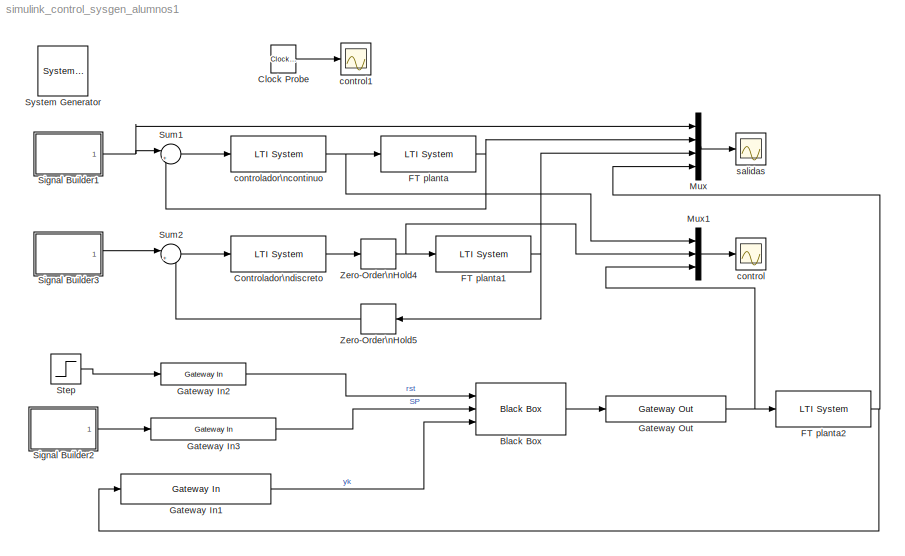
MODEL simulink_control_sysgen_alumnos1
KIND model
BLOCK [Reference]  System Generator  REF=xbsIndex_r4/ System Generator
  AttributesFormatString = System\\nGenerator
  Impl_file = ISE Defaults
  Ports = []
  SID = 43
  SourceBlock = xbsIndex_r4/ System Generator
  SourceType = Xilinx System Generator Block
  Synth_file = XST Defaults
  Tag = genX
  UserData = DataTag0
  UserDataPersistent = on
  block_type = sysgen
  clock_wrapper = Clock Enables
  core_generation = According to Block Masks
  dbl_ovrd = According to Block Masks
  dcm_input_clock_period = 10
  deprecated_control = off
  directory = <path>
  eval_field = 0
  has_advanced_control = 0
  incr_netlist = off
  infoedit = System Generator
  package = fg320
  part = xc3s500e
  proj_type = Project Navigator
  run_coregen = off
  sg_icon_stat = 50,50,0,0,token,white,0,58c5b5770fe5f7c311f53dbc6e73f0f6,right,,[ ],[ ]
  sg_mask_display = fprintf('','COMMENT: begin icon graphics');\npatch([0 50 50 0 0 ],[0 0 50 50 0 ],[1 1 1 ]);\npatch([1.6375 16.81 27.31 37.81 48.31 27.31 12.1375 1.6375 ],[36.655 36.655 47.155 36.655 47.155 47.155 47.155 36.655 ],[0.933333 0.203922 0.141176 ]);\npatch([12.1375 27.31 16.81 1.6375 12.1375 ],[26.155 26.155 36.655 36.655 26.155 ],[0.698039 0.0313725 0.219608 ]);\npatch([1.6375 16.81 27.31 12.1375 1.63...<+335ch>
  sggui_pos = 33,499,464,470
  simulink_period = 1E-3
  speed = -4
  synthesis_tool = XST
  sysclk_period = 20
  testbench = off
  trim_vbits = Everywhere in SubSystem
  xilinxfamily = spartan3e
BLOCK [Reference] Black Box  REF=xbsIndex_r4/Black Box
  Ports = [3, 1]
  SID = 101
  SourceBlock = xbsIndex_r4/Black Box
  SourceType = Xilinx Black Box Block
  block_type = blackbox2
  has_advanced_control = 0
  infoedit = Incorporates black box HDL and simulation model into a System Generator design.<br><br>You must supply a Black Box with certain information about the HDL component you would like to bring into System Generator. This information is provided through a Matlab function.<br><br>When \"Simulation mode\" is set to \"Inactive\", you will typically want to provide a separate simulation model by using a Sim...<+134ch>
  init_code = blackbox_wrapper_config
  sg_icon_stat = 90,52,3,1,white,blue,0,4235c655,right,,[ ],[ ]
  sg_mask_display = fprintf('','COMMENT: begin icon graphics');\npatch([0 90 90 0 0 ],[0 0 52 52 0 ],[0.77 0.82 0.91 ]);\nplot([0 90 90 0 0 ],[0 0 52 52 0 ]);\npatch([29.425 39.54 46.54 53.54 60.54 46.54 36.425 29.425 ],[33.77 33.77 40.77 33.77 40.77 40.77 40.77 33.77 ],[1 1 1 ]);\npatch([36.425 46.54 39.54 29.425 36.425 ],[26.77 26.77 33.77 33.77 26.77 ],[0.931 0.946 0.973 ]);\npatch([29.425 39.54 46.54 36.425 29.42...<+475ch>
  sggui_pos = -1,-1,-1,-1
  sim_method = ISE Simulator
  verbose = off
  xl_area = [0,0,0,0,0,0,0]
  xl_use_area = off
BLOCK [Reference] Clock Probe  REF=xbsIndex_r4/Clock Probe
  Ports = [0, 1]
  SID = 59
  SourceBlock = xbsIndex_r4/Clock Probe
  SourceType = Xilinx Clock Probe Block
  block_type = clkprobe
  has_advanced_control = 0
  infoedit = Clock probe.  Produces an output of type double that mirrors the hardware system clock.<br><br>Hardware notes:  This block is ignored when hardware is generated.
  sg_icon_stat = 25,28,0,1,white,yellow,4,98485602ae9d5ec3f0246e5c583bf6c6,right,,[ ],[ ]
  sg_mask_display = fprintf('','COMMENT: begin icon graphics');\npatch([25 24.7598 24.0485 22.8934 21.3388 19.4446 17.2835 14.9386 12.5 10.0614 7.71646 5.55537 3.66117 2.10663 0.951506 0.240184 0 0.240184 0.951506 2.10663 3.66117 5.55537 7.71646 10.0614 12.5 14.9386 17.2835 19.4446 21.3388 22.8934 24.0485 24.7598 25 25 ],[14 16.7313 19.3576 21.778 23.8995 25.6406 26.9343 27.731 28 27.731 26.9343 25.6406 23.8995 21.77...<+1201ch>
  sggui_pos = -1,-1,-1,-1
BLOCK [Reference] Controlador\ndiscreto  REF=cstblocks/LTI System
  IC = []
  Ports = [1, 1]
  SID = 26
  SourceBlock = cstblocks/LTI System
  SourceType = LTI Block
  sys = CT2_tust
BLOCK [Reference] FT planta  REF=cstblocks/LTI System
  IC = []
  Ports = [1, 1]
  SID = 21
  SourceBlock = cstblocks/LTI System
  SourceType = LTI Block
  sys = G
BLOCK [Reference] FT planta1  REF=cstblocks/LTI System
  IC = []
  Ports = [1, 1]
  SID = 27
  SourceBlock = cstblocks/LTI System
  SourceType = LTI Block
  sys = G
BLOCK [Reference] FT planta2  REF=cstblocks/LTI System
  IC = []
  Ports = [1, 1]
  SID = 91
  SourceBlock = cstblocks/LTI System
  SourceType = LTI Block
  sys = G
BLOCK [Reference] Gateway In1  REF=xbsIndex_r4/Gateway In
  ADCChannel = '1'
  LOCs = {}
  Ports = [1, 1]
  SID = 45
  SourceBlock = xbsIndex_r4/Gateway In
  SourceType = Xilinx Gateway In Block
  UseAsADC = off
  arith_type = Signed  (2's comp)
  bin_pt = 10
  block_type = gatewayin
  dbl_ovrd = off
  exp_width = 8
  frac_width = 24
  gui_display_data_type = Fixed-point
  has_advanced_control = 0
  hdl_port = on
  infoedit = Gateway in block.  Converts inputs of type Simulink integer, single, double and fixed-point to  Xilinx fixed-point or floating-point data type.<br><br>Hardware notes:  In hardware these blocks become top level input ports.  <repeated x3 — deduplicated; at blocks: Gateway In1, Gateway In2, Gateway In3>
  inherit_from_input = off
  locs_specified = off
  n_bits = 12
  overflow = Saturate
  period = 2e-3
  preci_type = Single
  quantization = Truncate
  sg_icon_stat = 150,30,1,1,white,yellow,1,d35bf8a1,right,,[ ],[ ]
  sg_mask_display = fprintf('','COMMENT: begin icon graphics');\npatch([0 150 150 0 0 ],[0 0 30 30 0 ],[0.95 0.93 0.65 ]);\nplot([0 150 150 0 0 ],[0 0 30 30 0 ]);\npatch([66.1 71.88 75.88 79.88 83.88 75.88 70.1 66.1 ],[19.44 19.44 23.44 19.44 23.44 23.44 23.44 19.44 ],[1 1 1 ]);\npatch([70.1 75.88 71.88 66.1 70.1 ],[15.44 15.44 19.44 19.44 15.44 ],[0.985 0.979 0.895 ]);\npatch([66.1 71.88 75.88 70.1 66.1 ],[11.44 11....<+370ch>
  sggui_pos = 1127,312,348,604
  timing_constraint = None
  xl_area = [0,0,0,0,0,0,0]
  xl_use_area = off
BLOCK [Reference] Gateway In2  REF=xbsIndex_r4/Gateway In
  ADCChannel = '1'
  LOCs = {}
  Ports = [1, 1]
  SID = 50
  SourceBlock = xbsIndex_r4/Gateway In
  SourceType = Xilinx Gateway In Block
  UseAsADC = off
  arith_type = Boolean
  bin_pt = 0
  block_type = gatewayin
  dbl_ovrd = off
  exp_width = 8
  frac_width = 24
  gui_display_data_type = Boolean
  has_advanced_control = 0
  hdl_port = on
  inherit_from_input = off
  locs_specified = off
  n_bits = 1
  overflow = Saturate
  period = 2E-3
  preci_type = Single
  quantization = Round  (unbiased: +/- Inf)
  sg_icon_stat = 85,22,1,1,white,yellow,1,d35bf8a1,right,,[ ],[ ]
  sg_mask_display = fprintf('','COMMENT: begin icon graphics');\npatch([0 85 85 0 0 ],[0 0 22 22 0 ],[0.95 0.93 0.65 ]);\nplot([0 85 85 0 0 ],[0 0 22 22 0 ]);\npatch([35.325 39.66 42.66 45.66 48.66 42.66 38.325 35.325 ],[14.33 14.33 17.33 14.33 17.33 17.33 17.33 14.33 ],[1 1 1 ]);\npatch([38.325 42.66 39.66 35.325 38.325 ],[11.33 11.33 14.33 14.33 11.33 ],[0.985 0.979 0.895 ]);\npatch([35.325 39.66 42.66 38.325 35.32...<+384ch>
  sggui_pos = 839,213,348,604
  timing_constraint = None
  xl_area = [0,0,0,0,0,0,0]
  xl_use_area = off
BLOCK [Reference] Gateway In3  REF=xbsIndex_r4/Gateway In
  ADCChannel = '1'
  LOCs = {}
  Ports = [1, 1]
  SID = 51
  SourceBlock = xbsIndex_r4/Gateway In
  SourceType = Xilinx Gateway In Block
  UseAsADC = off
  arith_type = Signed  (2's comp)
  bin_pt = 9
  block_type = gatewayin
  dbl_ovrd = off
  exp_width = 8
  frac_width = 24
  gui_display_data_type = Fixed-point
  has_advanced_control = 0
  hdl_port = on
  inherit_from_input = off
  locs_specified = off
  n_bits = 12
  overflow = Saturate
  period = 2E-3
  preci_type = Single
  quantization = Truncate
  sg_icon_stat = 125,22,1,1,white,yellow,1,d35bf8a1,right,,[ ],[ ]
  sg_mask_display = fprintf('','COMMENT: begin icon graphics');\npatch([0 125 125 0 0 ],[0 0 22 22 0 ],[0.95 0.93 0.65 ]);\nplot([0 125 125 0 0 ],[0 0 22 22 0 ]);\npatch([55.325 59.66 62.66 65.66 68.66 62.66 58.325 55.325 ],[14.33 14.33 17.33 14.33 17.33 17.33 17.33 14.33 ],[1 1 1 ]);\npatch([58.325 62.66 59.66 55.325 58.325 ],[11.33 11.33 14.33 14.33 11.33 ],[0.985 0.979 0.895 ]);\npatch([55.325 59.66 62.66 58.325 5...<+388ch>
  sggui_pos = 765,303,348,604
  timing_constraint = None
  xl_area = [0,0,0,0,0,0,0]
  xl_use_area = off
BLOCK [Reference] Gateway Out  REF=xbsIndex_r4/Gateway Out
  DACChannel = '1'
  LOCs = {}
  Ports = [1, 1]
  SID = 46
  SourceBlock = xbsIndex_r4/Gateway Out
  SourceType = Xilinx Gateway Out Block
  UseAsDAC = off
  block_type = gatewayout
  has_advanced_control = 0
  hdl_port = on
  infoedit = Gateway out block.  Converts Xilinx fixed-point or floating-point type inputs into ouputs of type Simulink integer, single, double, or fixed-point.<br><br>Hardware notes:  In hardware these blocks become top level output ports or are discarded, depending on how they are configured.
  inherit_from_input = off
  locs_specified = off
  sg_icon_stat = 120,26,1,1,white,yellow,1,c717efaa,right,,[ ],[ ]
  sg_mask_display = fprintf('','COMMENT: begin icon graphics');\npatch([0 120 120 0 0 ],[0 0 26 26 0 ],[0.95 0.93 0.65 ]);\nplot([0 120 120 0 0 ],[0 0 26 26 0 ]);\npatch([53.325 57.66 60.66 63.66 66.66 60.66 56.325 53.325 ],[16.33 16.33 19.33 16.33 19.33 19.33 19.33 16.33 ],[1 1 1 ]);\npatch([56.325 60.66 57.66 53.325 56.325 ],[13.33 13.33 16.33 16.33 13.33 ],[0.985 0.979 0.895 ]);\npatch([53.325 57.66 60.66 56.325 5...<+394ch>
  sggui_pos = -1,-1,-1,-1
  timing_constraint = None
  xl_area = [0,0,0,0,0,0,0]
  xl_use_area = off
BLOCK [Mux] Mux
  DisplayOption = bar
  Ports = [4, 1]
  SID = 25
BLOCK [Mux] Mux1
  DisplayOption = bar
  Inputs = 3
  Ports = [3, 1]
  SID = 33
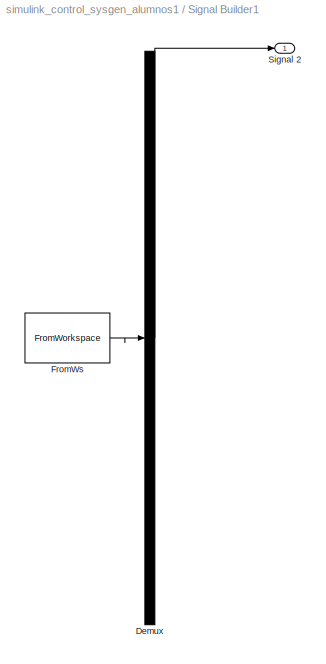
BLOCK [SubSystem] Signal Builder1
  ClipboardFcn = sigbuilder_block('clipboard');
  CloseFcn = sigbuilder_block('close');
  ContinueFcn = sigbuilder_block('continue')
  CopyFcn = sigbuilder_block('copy');
  DeleteFcn = sigbuilder_block('delete');
  FunctionWithSeparateData = off
  LoadFcn = sigbuilder_block('load');
  MaskHideContents = on
  MinAlgLoopOccurrences = off
  ModelCloseFcn = sigbuilder_block('modelClose');
  NameChangeFcn = sigbuilder_block('namechange');
  Opaque = off
  OpenFcn = sigbuilder_block('open',[403.5 199.5 550.5 395.25 ]);
  PauseFcn = sigbuilder_block('pause')
  Ports = [0, 1]
  PreSaveFcn = sigbuilder_block('preSave');
  PropExecContextOutsideSubsystem = off
  RTWSystemCode = Auto
  RequestExecContextInheritance = off
  SID = 85
  StartFcn = sigbuilder_block('start');
  StopFcn = sigbuilder_block('stop');
  Tag = STV Subsys
BLOCK [Demux] Signal Builder1/Demux
  Outputs = 1
  Ports = [1, 1]
  SID = 85:1
  Tag = STV Demux
BLOCK [FromWorkspace] Signal Builder1/FromWs
  SID = 85:2
  SampleTime = 0
  SigBuilderData = DataTag1
  Tag = STV FromWs
  VariableName = tuvar
  VnvData = DataTag2
  ZeroCross = on
BLOCK [Outport] Signal Builder1/Signal 2
  IconDisplay = Port number
  SID = 85:5
  Tag = STV Outport
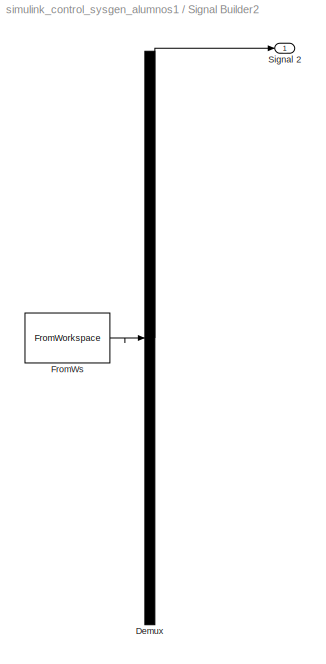
BLOCK [SubSystem] Signal Builder2
  ClipboardFcn = sigbuilder_block('clipboard');
  CloseFcn = sigbuilder_block('close');
  ContinueFcn = sigbuilder_block('continue')
  CopyFcn = sigbuilder_block('copy');
  DeleteFcn = sigbuilder_block('delete');
  FunctionWithSeparateData = off
  LoadFcn = sigbuilder_block('load');
  MaskHideContents = on
  MinAlgLoopOccurrences = off
  ModelCloseFcn = sigbuilder_block('modelClose');
  NameChangeFcn = sigbuilder_block('namechange');
  Opaque = off
  OpenFcn = sigbuilder_block('open',[403.5 199.5 550.5 395.25 ]);
  PauseFcn = sigbuilder_block('pause')
  Ports = [0, 1]
  PreSaveFcn = sigbuilder_block('preSave');
  PropExecContextOutsideSubsystem = off
  RTWSystemCode = Auto
  RequestExecContextInheritance = off
  SID = 84
  StartFcn = sigbuilder_block('start');
  StopFcn = sigbuilder_block('stop');
  Tag = STV Subsys
BLOCK [Demux] Signal Builder2/Demux
  Outputs = 1
  Ports = [1, 1]
  SID = 84:1
  Tag = STV Demux
BLOCK [FromWorkspace] Signal Builder2/FromWs
  SID = 84:2
  SampleTime = 0
  SigBuilderData = DataTag3
  Tag = STV FromWs
  VariableName = tuvar
  VnvData = DataTag4
  ZeroCross = on
BLOCK [Outport] Signal Builder2/Signal 2
  IconDisplay = Port number
  SID = 84:5
  Tag = STV Outport
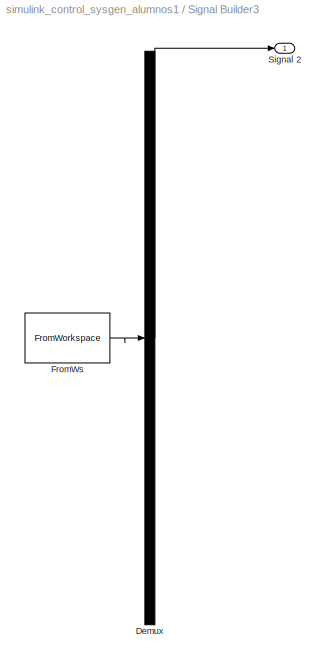
BLOCK [SubSystem] Signal Builder3
  ClipboardFcn = sigbuilder_block('clipboard');
  CloseFcn = sigbuilder_block('close');
  ContinueFcn = sigbuilder_block('continue')
  CopyFcn = sigbuilder_block('copy');
  DeleteFcn = sigbuilder_block('delete');
  FunctionWithSeparateData = off
  LoadFcn = sigbuilder_block('load');
  MaskHideContents = on
  MinAlgLoopOccurrences = off
  ModelCloseFcn = sigbuilder_block('modelClose');
  NameChangeFcn = sigbuilder_block('namechange');
  Opaque = off
  OpenFcn = sigbuilder_block('open',[403.5 199.5 550.5 395.25 ]);
  PauseFcn = sigbuilder_block('pause')
  Ports = [0, 1]
  PreSaveFcn = sigbuilder_block('preSave');
  PropExecContextOutsideSubsystem = off
  RTWSystemCode = Auto
  RequestExecContextInheritance = off
  SID = 86
  StartFcn = sigbuilder_block('start');
  StopFcn = sigbuilder_block('stop');
  Tag = STV Subsys
BLOCK [Demux] Signal Builder3/Demux
  Outputs = 1
  Ports = [1, 1]
  SID = 86:1
  Tag = STV Demux
BLOCK [FromWorkspace] Signal Builder3/FromWs
  SID = 86:2
  SampleTime = 0
  SigBuilderData = DataTag5
  Tag = STV FromWs
  VariableName = tuvar
  VnvData = DataTag6
  ZeroCross = on
BLOCK [Outport] Signal Builder3/Signal 2
  IconDisplay = Port number
  SID = 86:5
  Tag = STV Outport
BLOCK [Step] Step
  After = 0
  Before = 1
  SID = 54
  SampleTime = 0
  Time = 0.001
BLOCK [Sum] Sum1
  IconShape = round
  InputSameDT = off
  Inputs = |+-
  OutDataTypeStr = Inherit: Inherit via internal rule
  Ports = [2, 1]
  SID = 24
  SaturateOnIntegerOverflow = off
BLOCK [Sum] Sum2
  IconShape = round
  InputSameDT = off
  Inputs = |+-
  OutDataTypeStr = Inherit: Inherit via internal rule
  Ports = [2, 1]
  SID = 29
  SaturateOnIntegerOverflow = off
BLOCK [ZeroOrderHold] Zero-Order\nHold4
  SID = 31
  SampleTime = T2
BLOCK [ZeroOrderHold] Zero-Order\nHold5
  SID = 37
  SampleTime = T2
BLOCK [Scope] control
  DataFormat = StructureWithTime
  Floating = off
  LegendLocations = 0.80385     0.88423     0.16419     0.10231
  LimitDataPoints = off
  MaxDataPoints = 500000
  NumInputPorts = 1
  Ports = [1]
  SID = 32
  SampleTime = 0
  SaveName = ScopeData1
  ShowLegends = on
BLOCK [Scope] control1
  DataFormat = StructureWithTime
  Floating = off
  MaxDataPoints = 50000
  NumInputPorts = 1
  Ports = [1]
  SID = 60
  SampleTime = 0
  SaveName = ScopeData2
  ShowLegends = off
BLOCK [Reference] controlador\ncontinuo  REF=cstblocks/LTI System
  IC = []
  Ports = [1, 1]
  SID = 20
  SourceBlock = cstblocks/LTI System
  SourceType = LTI Block
  sys = C
BLOCK [Scope] salidas
  DataFormat = StructureWithTime
  Floating = off
  LegendLocations = 0.75402     0.81746     0.19907     0.11875
  LimitDataPoints = off
  MaxDataPoints = 500000
  NumInputPorts = 1
  Ports = [1]
  SID = 8
  SampleTime = 0
  ShowLegends = on
LINE Black Box:1 -> Gateway Out:1
LINE Clock Probe:1 -> control1:1
LINE Controlador\ndiscreto:1 -> Zero-Order\nHold4:1
NET FT planta1:1 -> Mux:3, Zero-Order\nHold5:1
NET FT planta2:1 -> Gateway In1:1, Mux:4
NET FT planta:1 -> Mux:2, Sum1:2
LINE Gateway In1:1 -> Black Box:3
LINE Gateway In2:1 -> Black Box:1
LINE Gateway In3:1 -> Black Box:2
NET Gateway Out:1 -> FT planta2:1, Mux1:3
LINE Mux1:1 -> control:1
LINE Mux:1 -> salidas:1
LINE Signal Builder1/Demux:1 -> Signal Builder1/Signal 2:1
LINE Signal Builder1/FromWs:1 -> Signal Builder1/Demux:1
NET Signal Builder1:1 -> Mux:1, Sum1:1
LINE Signal Builder2/Demux:1 -> Signal Builder2/Signal 2:1
LINE Signal Builder2/FromWs:1 -> Signal Builder2/Demux:1
LINE Signal Builder2:1 -> Gateway In3:1
LINE Signal Builder3/Demux:1 -> Signal Builder3/Signal 2:1
LINE Signal Builder3/FromWs:1 -> Signal Builder3/Demux:1
LINE Signal Builder3:1 -> Sum2:1
LINE Step:1 -> Gateway In2:1
LINE Sum1:1 -> controlador\ncontinuo:1
LINE Sum2:1 -> Controlador\ndiscreto:1
NET Zero-Order\nHold4:1 -> FT planta1:1, Mux1:2
LINE Zero-Order\nHold5:1 -> Sum2:2
NET controlador\ncontinuo:1 -> FT planta:1, Mux1:1
note: NET lines group one-source signal fan-out (src -> all destinations, sorted); 1:1 wires keep LINE
note: 1 file-system path scrubbed to <path> (not preserved elsewhere — flat text is the only slx artifact)
